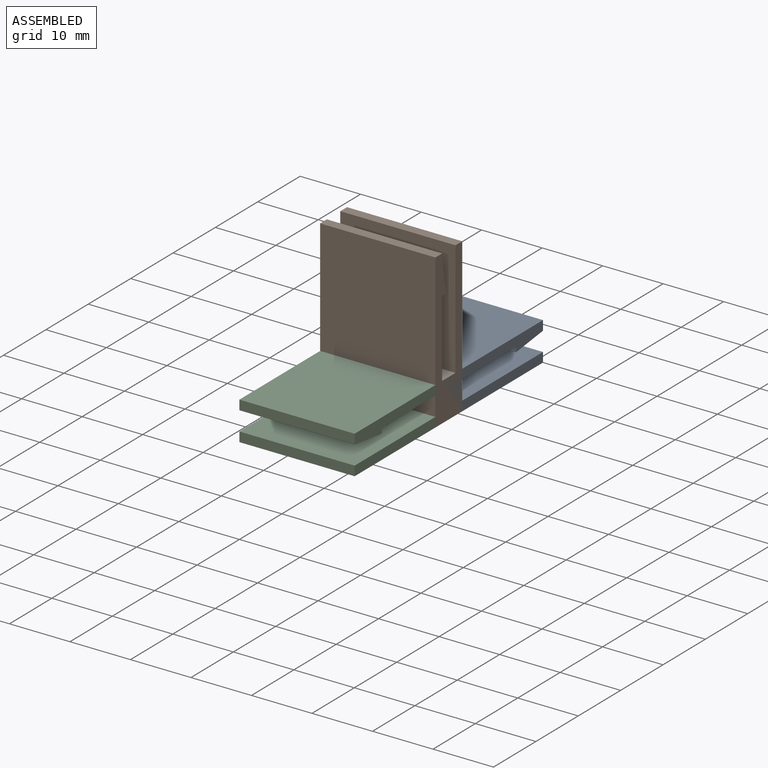
[diagram: assembled view]
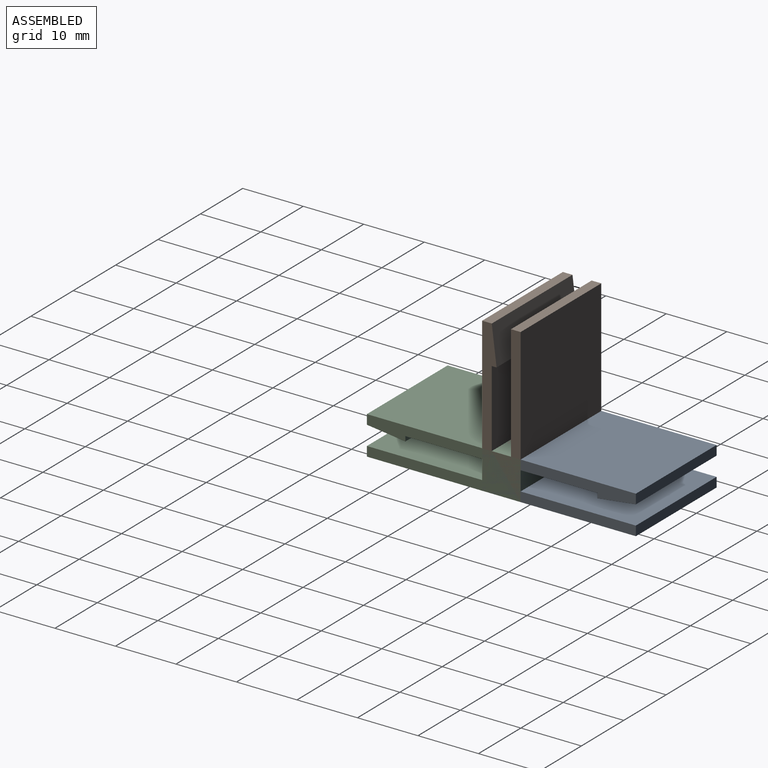
[diagram: assembled view, second angle]
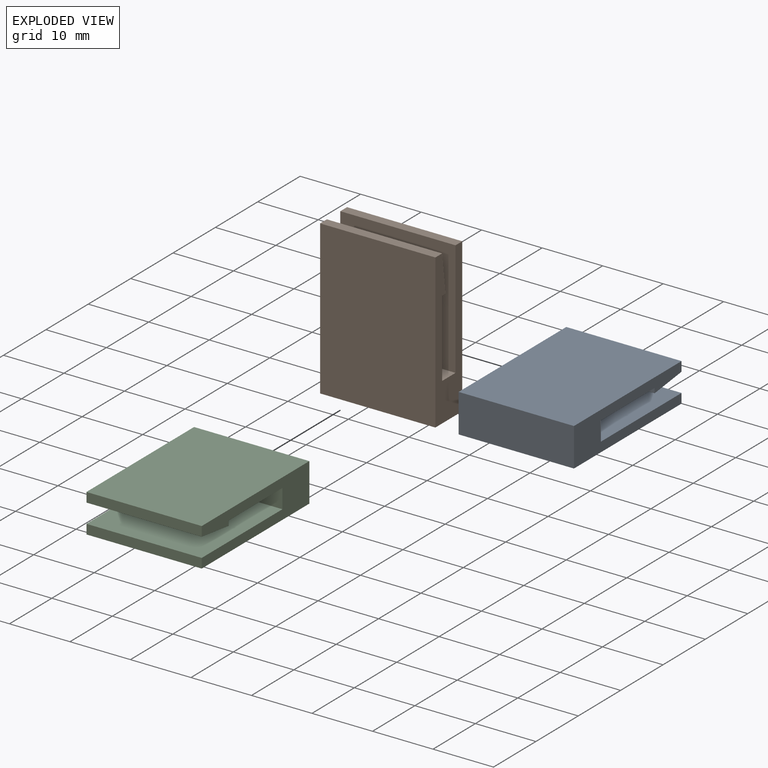
[diagram: exploded view]
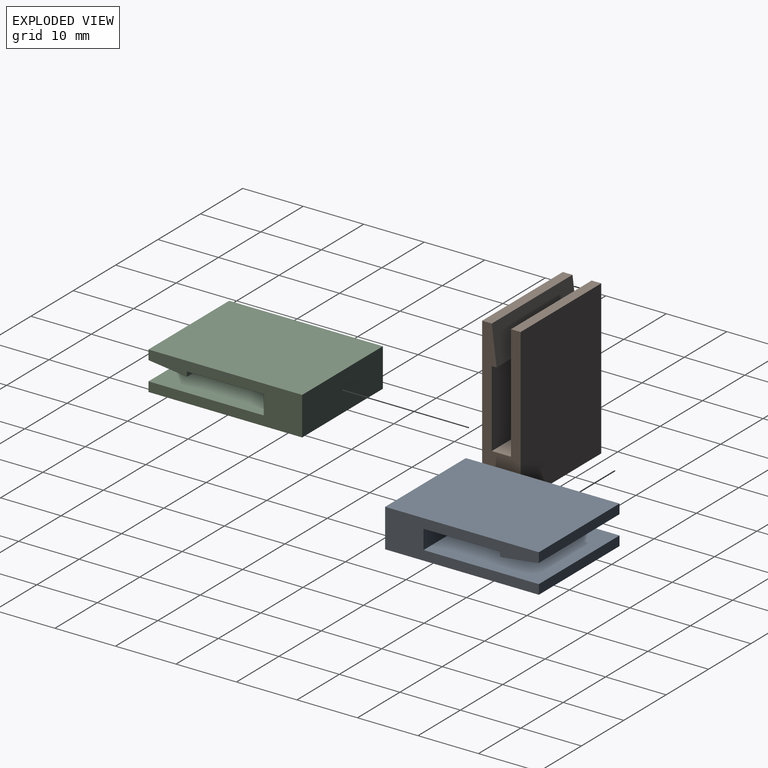
[diagram: exploded view, second angle]
ASSEMBLY  parts=3 mates=2
PART A: 12 faces, bbox 6.4x19.1x25.4 mm
  f0: plane 19.05x3.18mm, normal (0,0,1), area 60.5mm2, adj f1,f9,f10,f11
  f1: plane 19.05x19.05mm, normal (1,0,0), area 362.9mm2, adj f0,f2,f10,f11
  f2: plane 19.05x1.59mm, normal (0,0,1), area 30.2mm2, adj f1,f3,f10,f11
  f3: plane 25.4x19.05mm, normal (-1,0,0), area 483.9mm2, adj f2,f4,f10,f11
  f4: plane 19.05x6.35mm, normal (0,0,-1), area 121mm2, adj f3,f5,f10,f11
  f5: plane 25.4x19.05mm, normal (1,0,0), area 483.9mm2, adj f4,f6,f10,f11
  f6: plane 19.05x1.59mm, normal (0,0,1), area 30.2mm2, adj f5,f7,f10,f11
  f7: plane 19.05x6.35mm, normal (-0.99,0,0.12), area 121.9mm2, adj f6,f8,f10,f11
  f8: plane 19.05x0.79mm, normal (0,0,-1), area 15.1mm2, adj f7,f9,f10,f11
  f9: plane 19.05x12.7mm, normal (-1,0,0), area 241.9mm2, adj f0,f8,f10,f11
  f10: plane 25.4x6.35mm, normal (0,-1,0), area 103.3mm2, adj f0,f1,f2,f3,f4,f5,f6,f7
  f11: plane 25.4x6.35mm, normal (0,1,0), area 103.3mm2, adj f0,f1,f2,f3,f4,f5,f6,f7
PART B: same geometry as A
PART C: same geometry as A
PLACE A rot(axis=(-0.58,-0.58,-0.58),120deg) t=(12.19,-66.87,-17.53)mm
PLACE B rot(axis=(0,0,-1),90deg) t=(12.19,-60.52,-17.53)mm
PLACE C rot(axis=(0.58,-0.58,0.58),120deg) t=(-6.86,-60.52,-17.53)mm
MATE fastened C.f4 <-> B.f3  axis (0,1,0) through (12.19,-60.52,-17.53)mm
MATE fastened A.f10 <-> B.f10  axis (-1,0,0) through (-6.86,-66.87,-17.53)mm
